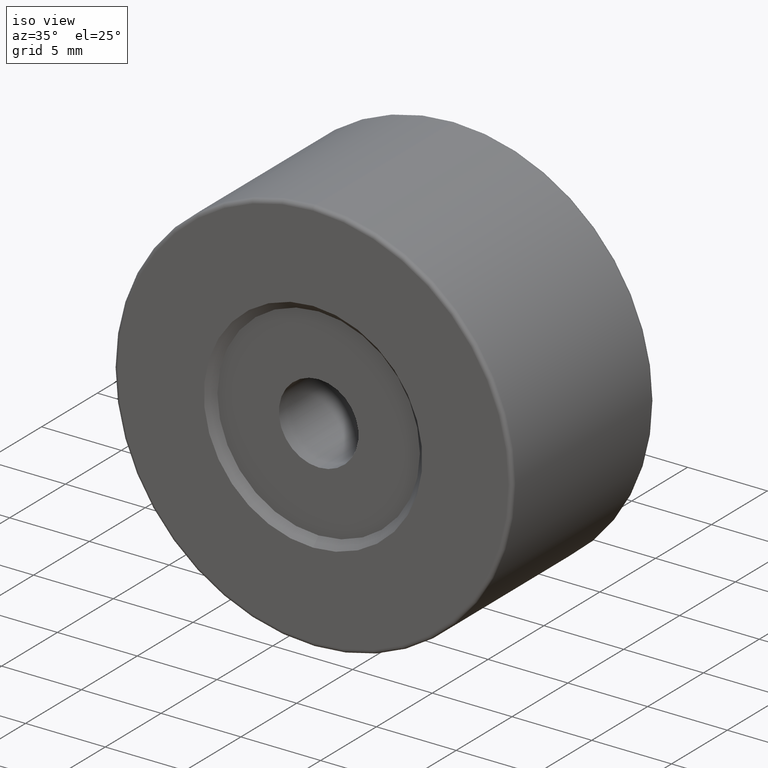
[diagram: clean part render]
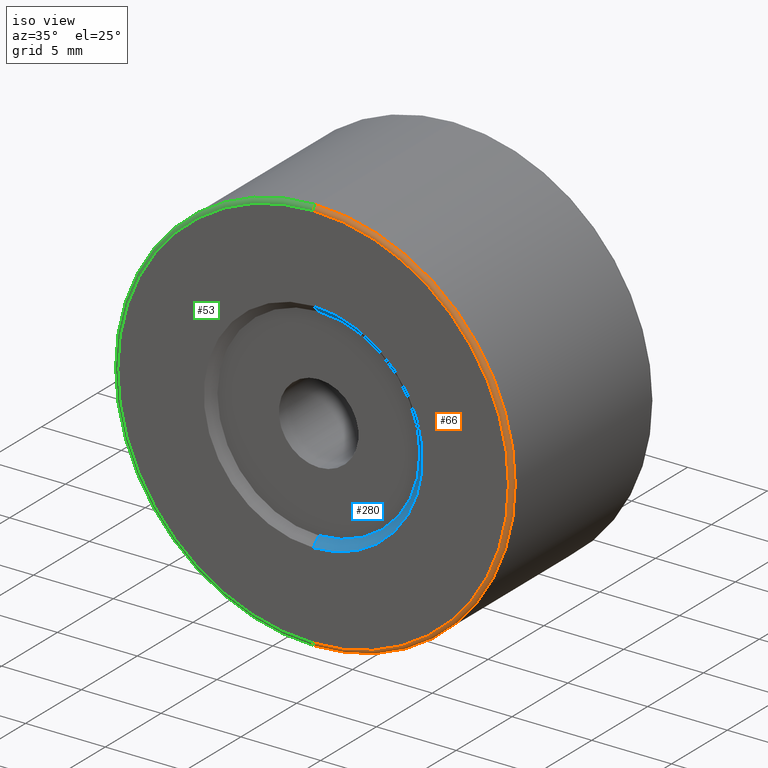
[diagram: same view with three faces highlighted in distinct colors, each labeled with its STEP entity id]
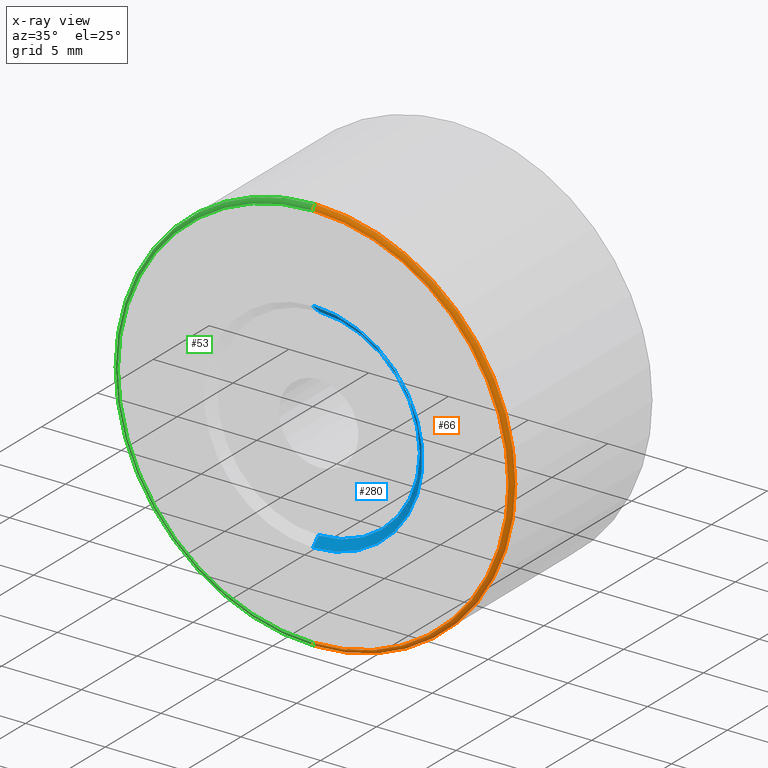
[diagram: x-ray of the same camera — body ghosted, the three highlighted faces saturated]
A machine part, iso view with three faces highlighted in distinct colors.
The next image is the same camera in x-ray (body ghosted, the three faces saturated) — at least one of them is partly hidden behind the body in this view.
Their STEP definitions:

[orange] entity #66 — the highlighted toroidal blend (fillet) surface has major radius 12.25 mm and minor (blend) radius 0.25 mm.
#3 = ORIENTED_EDGE ( 'NONE', *, *, #251, .T. ) ;
#13 = DIRECTION ( 'NONE',  ( 0.0000000000000000000, 1.000000000000000000, 0.0000000000000000000 ) ) ;
#60 = DIRECTION ( 'NONE',  ( 0.0000000000000000000, 0.0000000000000000000, 1.000000000000000000 ) ) ;
#62 = CIRCLE ( 'NONE', #371, 0.2500000000000002220 ) ;
#66 = ADVANCED_FACE ( 'NONE', ( #396 ), #573, .T. ) ;
#67 = DIRECTION ( 'NONE',  ( 1.000000000000000000, -0.0000000000000000000, 1.224646799147353207E-16 ) ) ;
#90 = VERTEX_POINT ( 'NONE', #177 ) ;
#110 = AXIS2_PLACEMENT_3D ( 'NONE', #330, #463, #380 ) ;
#113 = DIRECTION ( 'NONE',  ( 0.0000000000000000000, 0.0000000000000000000, -1.000000000000000000 ) ) ;
#115 = EDGE_CURVE ( 'NONE', #136, #180, #382, .T. ) ;
#134 = CIRCLE ( 'NONE', #110, 0.2500000000000002220 ) ;
#136 = VERTEX_POINT ( 'NONE', #201 ) ;
#142 = EDGE_CURVE ( 'NONE', #90, #136, #134, .T. ) ;
#177 = CARTESIAN_POINT ( 'NONE',  ( -22.50520183104453409, -4.951747815230611138, 62.25000000000000000 ) ) ;
#180 = VERTEX_POINT ( 'NONE', #326 ) ;
#201 = CARTESIAN_POINT ( 'NONE',  ( -22.50520183104453409, -4.701747815230611138, 62.50000000000000000 ) ) ;
#251 = EDGE_CURVE ( 'NONE', #339, #180, #62, .T. ) ;
#263 = DIRECTION ( 'NONE',  ( 0.0000000000000000000, 1.000000000000000000, 0.0000000000000000000 ) ) ;
#285 = AXIS2_PLACEMENT_3D ( 'NONE', #338, #13, #60 ) ;
#310 = ORIENTED_EDGE ( 'NONE', *, *, #115, .F. ) ;
#320 = AXIS2_PLACEMENT_3D ( 'NONE', #569, #437, #386 ) ;
#326 = CARTESIAN_POINT ( 'NONE',  ( -22.50520183104453409, -4.701747815230611138, 37.50000000000000711 ) ) ;
#330 = CARTESIAN_POINT ( 'NONE',  ( -22.50520183104453409, -4.701747815230611138, 62.25000000000000000 ) ) ;
#335 = CARTESIAN_POINT ( 'NONE',  ( -22.50520183104453409, -4.701747815230611138, 37.75000000000000711 ) ) ;
#338 = CARTESIAN_POINT ( 'NONE',  ( -22.50520183104453409, -4.701747815230611138, 50.00000000000000000 ) ) ;
#339 = VERTEX_POINT ( 'NONE', #461 ) ;
#371 = AXIS2_PLACEMENT_3D ( 'NONE', #335, #67, #113 ) ;
#380 = DIRECTION ( 'NONE',  ( 0.0000000000000000000, 0.0000000000000000000, 1.000000000000000000 ) ) ;
#382 = CIRCLE ( 'NONE', #285, 12.49999999999999645 ) ;
#384 = ORIENTED_EDGE ( 'NONE', *, *, #470, .F. ) ;
#386 = DIRECTION ( 'NONE',  ( 0.0000000000000000000, 0.0000000000000000000, 1.000000000000000000 ) ) ;
#396 = FACE_OUTER_BOUND ( 'NONE', #452, .T. ) ;
#437 = DIRECTION ( 'NONE',  ( -0.0000000000000000000, -1.000000000000000000, -0.0000000000000000000 ) ) ;
#445 = DIRECTION ( 'NONE',  ( 0.0000000000000000000, 0.0000000000000000000, 1.000000000000000000 ) ) ;
#452 = EDGE_LOOP ( 'NONE', ( #384, #3, #310, #531 ) ) ;
#461 = CARTESIAN_POINT ( 'NONE',  ( -22.50520183104453409, -4.951747815230611138, 37.75000000000000711 ) ) ;
#463 = DIRECTION ( 'NONE',  ( -1.000000000000000000, 0.0000000000000000000, 0.0000000000000000000 ) ) ;
#465 = AXIS2_PLACEMENT_3D ( 'NONE', #570, #263, #445 ) ;
#470 = EDGE_CURVE ( 'NONE', #339, #90, #521, .T. ) ;
#521 = CIRCLE ( 'NONE', #320, 12.24999999999999645 ) ;
#531 = ORIENTED_EDGE ( 'NONE', *, *, #142, .F. ) ;
#569 = CARTESIAN_POINT ( 'NONE',  ( -22.50520183104453409, -4.951747815230611138, 50.00000000000000000 ) ) ;
#570 = CARTESIAN_POINT ( 'NONE',  ( -22.50520183104453409, -4.701747815230611138, 50.00000000000000000 ) ) ;
#573 = TOROIDAL_SURFACE ( 'NONE', #465, 12.25000000000000000, 0.2500000000000000000 ) ;

[blue] entity #280 — the highlighted conical surface has half-angle 45 deg.
#15 = CARTESIAN_POINT ( 'NONE',  ( -22.50520183104453409, -4.451747815230611138, 50.00000000000000000 ) ) ;
#18 = EDGE_CURVE ( 'NONE', #269, #138, #393, .T. ) ;
#47 = EDGE_LOOP ( 'NONE', ( #313, #257, #322, #278 ) ) ;
#48 = AXIS2_PLACEMENT_3D ( 'NONE', #52, #196, #150 ) ;
#52 = CARTESIAN_POINT ( 'NONE',  ( -22.50520183104453409, -4.951747815230611138, 50.00000000000000000 ) ) ;
#59 = LINE ( 'NONE', #202, #248 ) ;
#64 = AXIS2_PLACEMENT_3D ( 'NONE', #252, #516, #508 ) ;
#70 = CIRCLE ( 'NONE', #48, 6.850000000000008527 ) ;
#71 = CIRCLE ( 'NONE', #329, 6.350000000000001421 ) ;
#112 = DIRECTION ( 'NONE',  ( 0.0000000000000000000, -0.7071067811865493491, -0.7071067811865456854 ) ) ;
#138 = VERTEX_POINT ( 'NONE', #153 ) ;
#150 = DIRECTION ( 'NONE',  ( 0.0000000000000000000, 0.0000000000000000000, 1.000000000000000000 ) ) ;
#153 = CARTESIAN_POINT ( 'NONE',  ( -22.50520183104453409, -4.951747815230611138, 56.85000000000000853 ) ) ;
#178 = EDGE_CURVE ( 'NONE', #138, #499, #70, .T. ) ;
#196 = DIRECTION ( 'NONE',  ( 0.0000000000000000000, 1.000000000000000000, 0.0000000000000000000 ) ) ;
#202 = CARTESIAN_POINT ( 'NONE',  ( -22.50520183104453409, -4.951747815230611138, 43.14999999999999147 ) ) ;
#206 = DIRECTION ( 'NONE',  ( -0.0000000000000000000, 1.000000000000000000, -0.0000000000000000000 ) ) ;
#234 = CONICAL_SURFACE ( 'NONE', #64, 6.850000000000008527, 0.7853981633974457255 ) ;
#248 = VECTOR ( 'NONE', #112, 1000.000000000000000 ) ;
#252 = CARTESIAN_POINT ( 'NONE',  ( -22.50520183104453409, -4.951747815230611138, 50.00000000000000000 ) ) ;
#257 = ORIENTED_EDGE ( 'NONE', *, *, #415, .T. ) ;
#269 = VERTEX_POINT ( 'NONE', #428 ) ;
#278 = ORIENTED_EDGE ( 'NONE', *, *, #178, .F. ) ;
#280 = ADVANCED_FACE ( 'NONE', ( #518 ), #234, .F. ) ;
#313 = ORIENTED_EDGE ( 'NONE', *, *, #18, .F. ) ;
#322 = ORIENTED_EDGE ( 'NONE', *, *, #400, .T. ) ;
#329 = AXIS2_PLACEMENT_3D ( 'NONE', #15, #206, #378 ) ;
#341 = CARTESIAN_POINT ( 'NONE',  ( -22.50520183104453409, -4.951747815230611138, 43.14999999999999147 ) ) ;
#369 = VERTEX_POINT ( 'NONE', #557 ) ;
#376 = VECTOR ( 'NONE', #526, 1000.000000000000000 ) ;
#378 = DIRECTION ( 'NONE',  ( 0.0000000000000000000, 0.0000000000000000000, 1.000000000000000000 ) ) ;
#393 = LINE ( 'NONE', #448, #376 ) ;
#400 = EDGE_CURVE ( 'NONE', #369, #499, #59, .T. ) ;
#415 = EDGE_CURVE ( 'NONE', #269, #369, #71, .T. ) ;
#428 = CARTESIAN_POINT ( 'NONE',  ( -22.50520183104453409, -4.451747815230611138, 56.35000000000000142 ) ) ;
#448 = CARTESIAN_POINT ( 'NONE',  ( -22.50520183104453409, -4.951747815230611138, 56.85000000000000853 ) ) ;
#499 = VERTEX_POINT ( 'NONE', #341 ) ;
#508 = DIRECTION ( 'NONE',  ( 0.0000000000000000000, 0.0000000000000000000, -1.000000000000000000 ) ) ;
#516 = DIRECTION ( 'NONE',  ( -0.0000000000000000000, -1.000000000000000000, -0.0000000000000000000 ) ) ;
#518 = FACE_OUTER_BOUND ( 'NONE', #47, .T. ) ;
#526 = DIRECTION ( 'NONE',  ( 8.659560562354910671E-17, -0.7071067811865493491, 0.7071067811865456854 ) ) ;
#557 = CARTESIAN_POINT ( 'NONE',  ( -22.50520183104453409, -4.451747815230611138, 43.64999999999999858 ) ) ;

[green] entity #53 — the highlighted toroidal blend (fillet) surface has major radius 12.25 mm and minor (blend) radius 0.25 mm.
#38 = DIRECTION ( 'NONE',  ( 0.0000000000000000000, 1.000000000000000000, 0.0000000000000000000 ) ) ;
#53 = ADVANCED_FACE ( 'NONE', ( #267 ), #350, .T. ) ;
#62 = CIRCLE ( 'NONE', #371, 0.2500000000000002220 ) ;
#67 = DIRECTION ( 'NONE',  ( 1.000000000000000000, -0.0000000000000000000, 1.224646799147353207E-16 ) ) ;
#72 = AXIS2_PLACEMENT_3D ( 'NONE', #337, #38, #395 ) ;
#90 = VERTEX_POINT ( 'NONE', #177 ) ;
#102 = ORIENTED_EDGE ( 'NONE', *, *, #251, .F. ) ;
#110 = AXIS2_PLACEMENT_3D ( 'NONE', #330, #463, #380 ) ;
#113 = DIRECTION ( 'NONE',  ( 0.0000000000000000000, 0.0000000000000000000, -1.000000000000000000 ) ) ;
#123 = AXIS2_PLACEMENT_3D ( 'NONE', #289, #258, #579 ) ;
#134 = CIRCLE ( 'NONE', #110, 0.2500000000000002220 ) ;
#136 = VERTEX_POINT ( 'NONE', #201 ) ;
#142 = EDGE_CURVE ( 'NONE', #90, #136, #134, .T. ) ;
#145 = ORIENTED_EDGE ( 'NONE', *, *, #492, .F. ) ;
#173 = AXIS2_PLACEMENT_3D ( 'NONE', #182, #358, #347 ) ;
#177 = CARTESIAN_POINT ( 'NONE',  ( -22.50520183104453409, -4.951747815230611138, 62.25000000000000000 ) ) ;
#180 = VERTEX_POINT ( 'NONE', #326 ) ;
#182 = CARTESIAN_POINT ( 'NONE',  ( -22.50520183104453409, -4.701747815230611138, 50.00000000000000000 ) ) ;
#201 = CARTESIAN_POINT ( 'NONE',  ( -22.50520183104453409, -4.701747815230611138, 62.50000000000000000 ) ) ;
#245 = EDGE_CURVE ( 'NONE', #90, #339, #374, .T. ) ;
#251 = EDGE_CURVE ( 'NONE', #339, #180, #62, .T. ) ;
#258 = DIRECTION ( 'NONE',  ( -0.0000000000000000000, -1.000000000000000000, -0.0000000000000000000 ) ) ;
#267 = FACE_OUTER_BOUND ( 'NONE', #501, .T. ) ;
#289 = CARTESIAN_POINT ( 'NONE',  ( -22.50520183104453409, -4.951747815230611138, 50.00000000000000000 ) ) ;
#316 = ORIENTED_EDGE ( 'NONE', *, *, #245, .F. ) ;
#326 = CARTESIAN_POINT ( 'NONE',  ( -22.50520183104453409, -4.701747815230611138, 37.50000000000000711 ) ) ;
#330 = CARTESIAN_POINT ( 'NONE',  ( -22.50520183104453409, -4.701747815230611138, 62.25000000000000000 ) ) ;
#335 = CARTESIAN_POINT ( 'NONE',  ( -22.50520183104453409, -4.701747815230611138, 37.75000000000000711 ) ) ;
#337 = CARTESIAN_POINT ( 'NONE',  ( -22.50520183104453409, -4.701747815230611138, 50.00000000000000000 ) ) ;
#339 = VERTEX_POINT ( 'NONE', #461 ) ;
#347 = DIRECTION ( 'NONE',  ( 0.0000000000000000000, 0.0000000000000000000, 1.000000000000000000 ) ) ;
#350 = TOROIDAL_SURFACE ( 'NONE', #173, 12.25000000000000000, 0.2500000000000000000 ) ;
#358 = DIRECTION ( 'NONE',  ( 0.0000000000000000000, 1.000000000000000000, 0.0000000000000000000 ) ) ;
#361 = CIRCLE ( 'NONE', #72, 12.49999999999999645 ) ;
#371 = AXIS2_PLACEMENT_3D ( 'NONE', #335, #67, #113 ) ;
#374 = CIRCLE ( 'NONE', #123, 12.24999999999999645 ) ;
#380 = DIRECTION ( 'NONE',  ( 0.0000000000000000000, 0.0000000000000000000, 1.000000000000000000 ) ) ;
#395 = DIRECTION ( 'NONE',  ( 0.0000000000000000000, 0.0000000000000000000, 1.000000000000000000 ) ) ;
#461 = CARTESIAN_POINT ( 'NONE',  ( -22.50520183104453409, -4.951747815230611138, 37.75000000000000711 ) ) ;
#463 = DIRECTION ( 'NONE',  ( -1.000000000000000000, 0.0000000000000000000, 0.0000000000000000000 ) ) ;
#492 = EDGE_CURVE ( 'NONE', #180, #136, #361, .T. ) ;
#501 = EDGE_LOOP ( 'NONE', ( #102, #316, #559, #145 ) ) ;
#559 = ORIENTED_EDGE ( 'NONE', *, *, #142, .T. ) ;
#579 = DIRECTION ( 'NONE',  ( 0.0000000000000000000, 0.0000000000000000000, 1.000000000000000000 ) ) ;